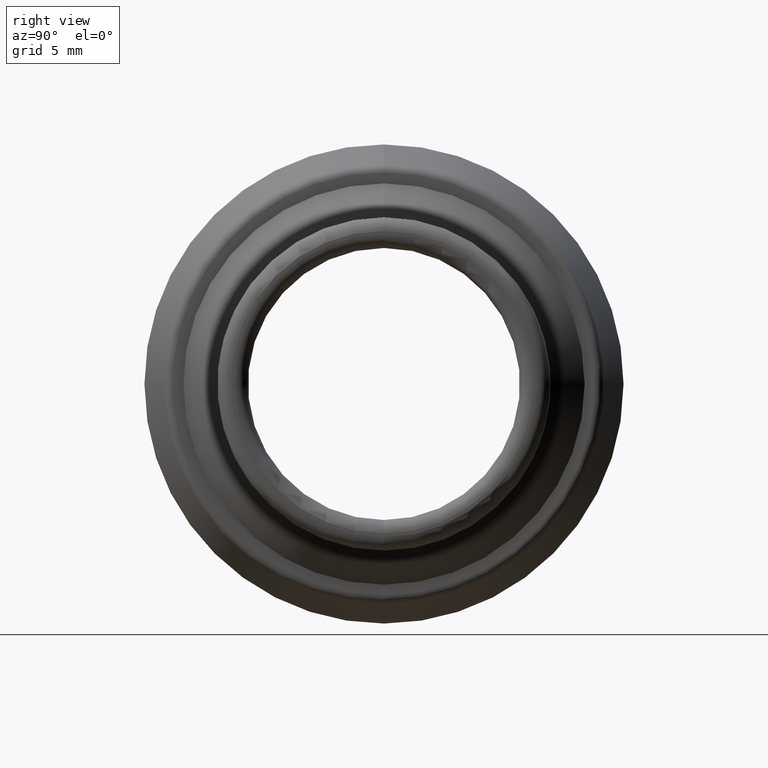
[diagram: clean part render]
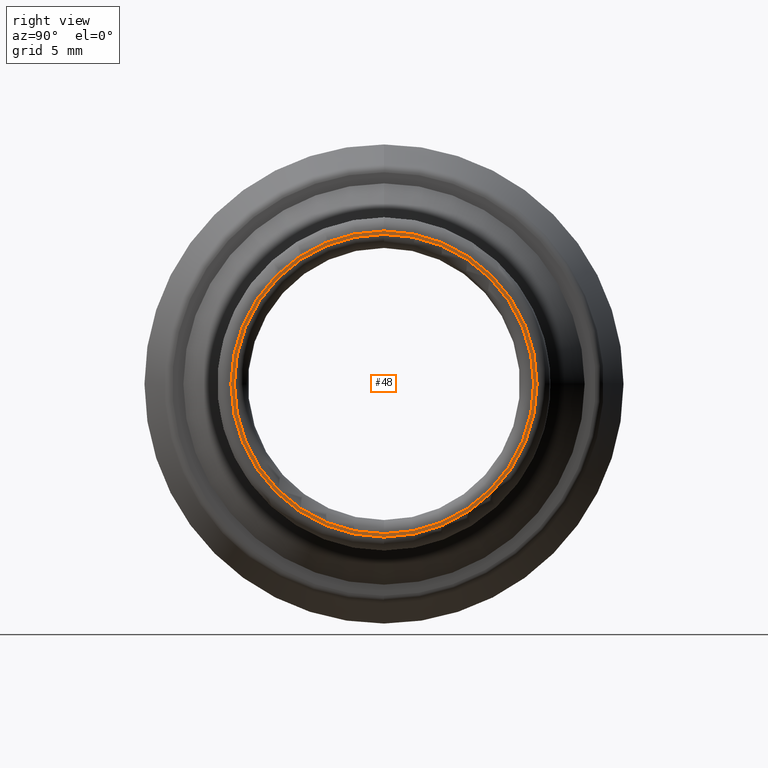
[diagram: same view with one face highlighted and labeled with its STEP entity id]
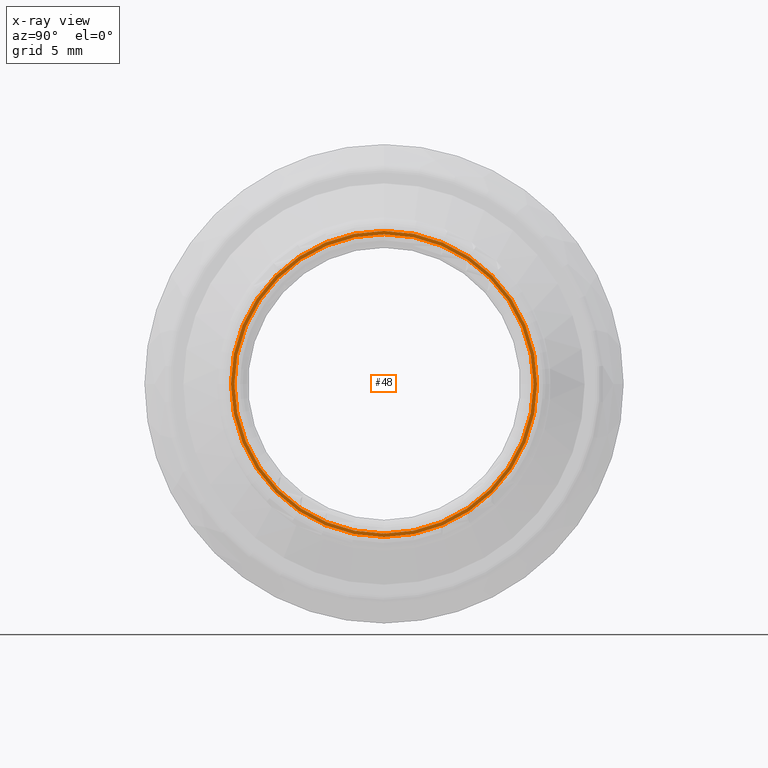
[diagram: x-ray of the same camera — body ghosted, the highlighted face saturated]
A machine part, right view. The second image highlights one B-rep face of the part: STEP entity #48.
The next image is the same camera in x-ray: the body ghosted, the highlighted face saturated — about 0% of this face is hidden behind the body in this view.
In plain terms, the highlighted planar face has unit normal (1, 0, 0).
Its self-contained STEP definition (entity closure, byte-faithful):
#48=ADVANCED_FACE('',(#104,#77),#255,.T.);
#77=FACE_OUTER_BOUND('',#111,.F.);
#104=FACE_BOUND('',#110,.F.);
#110=EDGE_LOOP('',(#150,#151));
#111=EDGE_LOOP('',(#152,#153));
#150=ORIENTED_EDGE('',*,*,#300,.T.);
#151=ORIENTED_EDGE('',*,*,#299,.T.);
#152=ORIENTED_EDGE('',*,*,#298,.F.);
#153=ORIENTED_EDGE('',*,*,#296,.F.);
#255=PLANE('',#503);
#296=EDGE_CURVE('',#416,#415,#354,.T.);
#298=EDGE_CURVE('',#415,#416,#356,.T.);
#299=EDGE_CURVE('',#414,#413,#357,.T.);
#300=EDGE_CURVE('',#413,#414,#358,.T.);
#354=CIRCLE('',#461,9.);
#356=CIRCLE('',#463,9.);
#357=CIRCLE('',#464,8.8);
#358=CIRCLE('',#465,8.8);
#413=VERTEX_POINT('',#723);
#414=VERTEX_POINT('',#724);
#415=VERTEX_POINT('',#725);
#416=VERTEX_POINT('',#726);
#461=AXIS2_PLACEMENT_3D('',#742,#549,#550);
#463=AXIS2_PLACEMENT_3D('',#744,#553,#554);
#464=AXIS2_PLACEMENT_3D('',#745,#555,#556);
#465=AXIS2_PLACEMENT_3D('',#746,#557,#558);
#503=AXIS2_PLACEMENT_3D('',#796,#645,#646);
#549=DIRECTION('',(1.,0.,0.));
#550=DIRECTION('',(0.,0.,1.));
#553=DIRECTION('',(1.,0.,0.));
#554=DIRECTION('',(0.,0.,-1.));
#555=DIRECTION('',(1.,0.,0.));
#556=DIRECTION('',(0.,0.,1.));
#557=DIRECTION('',(1.,0.,0.));
#558=DIRECTION('',(0.,0.,-1.));
#645=DIRECTION('',(1.,0.,0.));
#646=DIRECTION('',(0.,-1.,0.));
#723=CARTESIAN_POINT('',(66.7150000130991,-49.9999958811694,-8.8000001271772));
#724=CARTESIAN_POINT('',(66.7150000130991,-49.9999958811694,8.7999998728228));
#725=CARTESIAN_POINT('',(66.7150000130991,-49.9999958811694,-9.0000001271772));
#726=CARTESIAN_POINT('',(66.7150000130991,-49.9999958811694,8.9999998728228));
#742=CARTESIAN_POINT('',(66.7150000130991,-49.9999958811694,-1.27177199798012E-07));
#744=CARTESIAN_POINT('',(66.7150000130991,-49.9999958811694,-1.27177199798012E-07));
#745=CARTESIAN_POINT('',(66.7150000130991,-49.9999958811694,-1.27177199798012E-07));
#746=CARTESIAN_POINT('',(66.7150000130991,-49.9999958811694,-1.27177199798012E-07));
#796=CARTESIAN_POINT('',(66.7150000130991,-40.1999958811694,9.7999998728228));